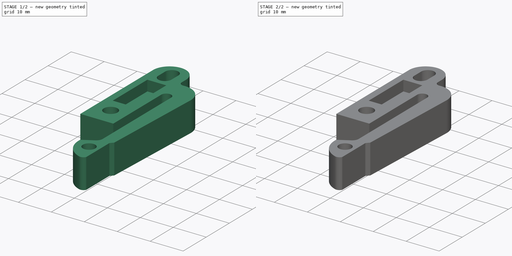
[diagram: build sequence overview — one tinted view per stage of 2, left to right]
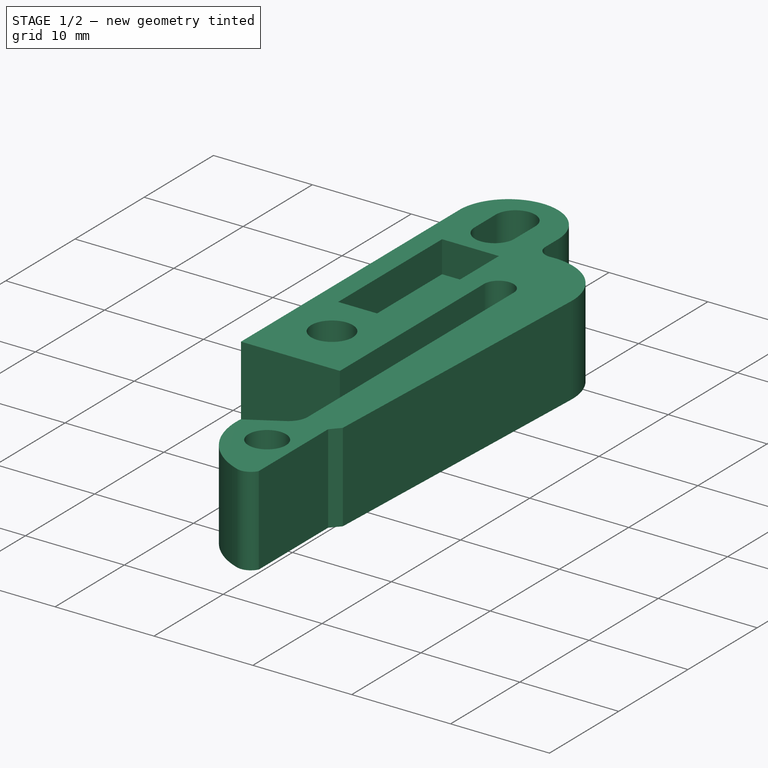
[diagram: stage 1 of 2 — iso view after this stage's code; geometry added in this stage tinted green]
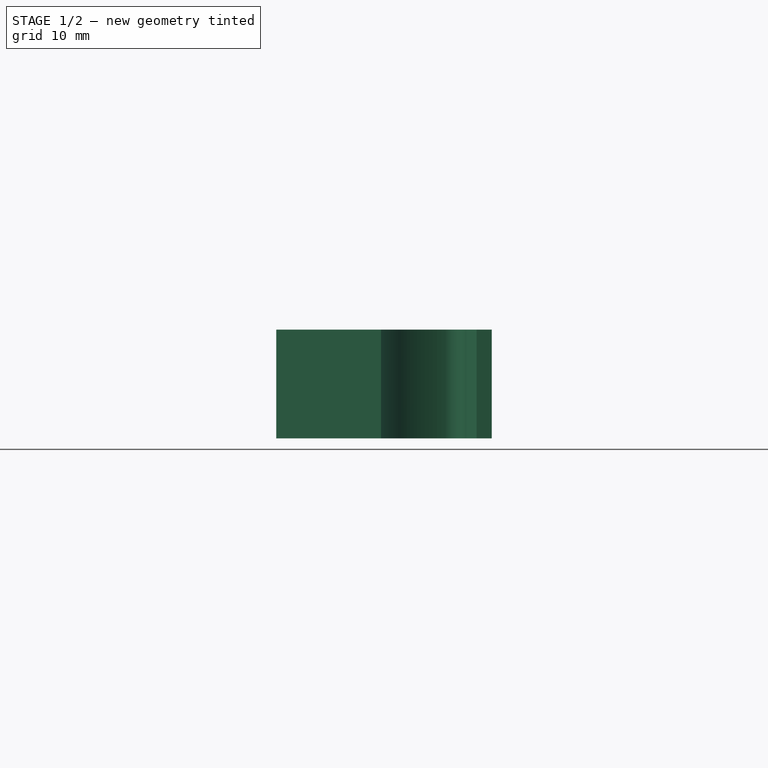
[diagram: stage 1 of 2 — front view after this stage's code; geometry added in this stage tinted green]
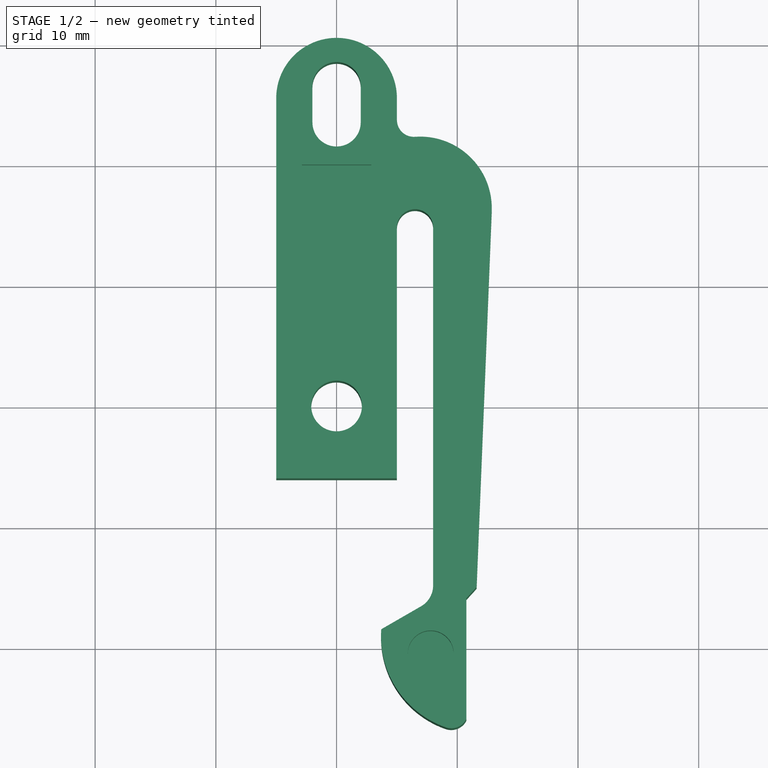
[diagram: stage 1 of 2 — top view after this stage's code; geometry added in this stage tinted green]
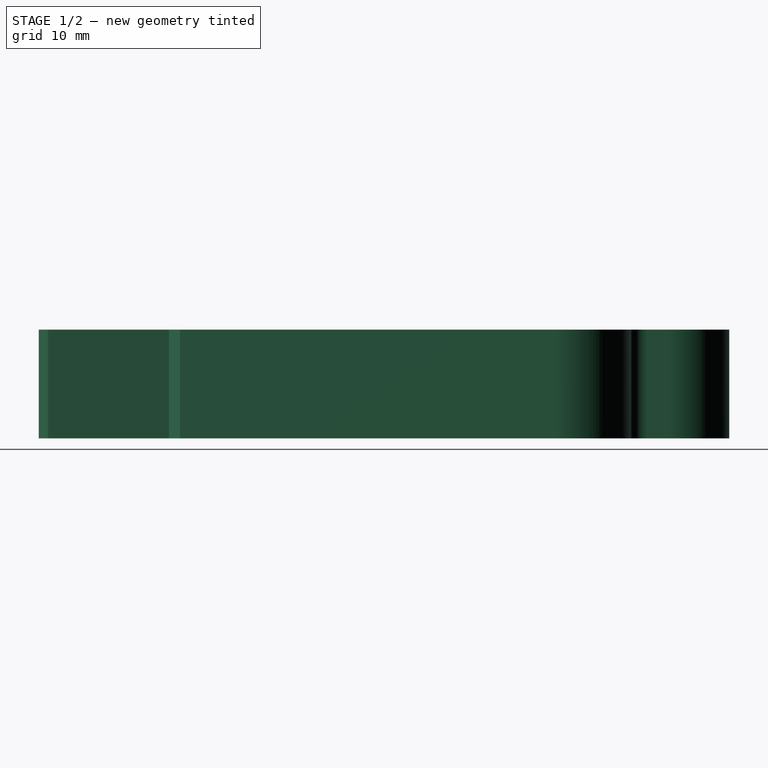
[diagram: stage 1 of 2 — right view after this stage's code; geometry added in this stage tinted green]
FCSTD DOCUMENT  (FreeCAD 0.17R13541 (Git))
Label: Facid_Flip_Switch
License: All rights reserved
LicenseURL: http://en.wikipedia.org/wiki/All_rights_reserved
objects: Sketcher::SketchObject×2, PartDesign::Pad×1, PartDesign::Pocket×1, PartDesign::Mirrored×1, PartDesign::Body×1
note: 8 computed .brp shape members not serialized (recipe doc carries the construction recipe); baked Part::Feature solids carry a one-line shape summary decoded from their .brp

FEATURE [Sketcher::SketchObject] Sketch
  MapMode = 5
  Support = -> [XY_Plane]
  sketch-geometry (28):
    g0: Circle CenterX=0 CenterY=0 CenterZ=0 NormalX=0 NormalY=0 NormalZ=1 AngleXU=0 Radius=2.1
    g1: LineSegment StartX=-5 StartY=-6 StartZ=0 EndX=5 EndY=-6 EndZ=0
    g2: LineSegment StartX=-5 StartY=-6 StartZ=0 EndX=-5 EndY=25.5 EndZ=0
    g3: ArcOfCircle CenterX=0 CenterY=25.5 CenterZ=0 NormalX=0 NormalY=0 NormalZ=1 AngleXU=0 Radius=5 StartAngle=0 EndAngle=3.14159
    g4: GeomPoint X=0 Y=30.5 Z=0
    g5: ArcOfCircle CenterX=0 CenterY=23.5 CenterZ=0 NormalX=0 NormalY=0 NormalZ=1 AngleXU=0 Radius=2 StartAngle=3.14159 EndAngle=6.28319
    g6: ArcOfCircle CenterX=0 CenterY=26.5 CenterZ=0 NormalX=0 NormalY=0 NormalZ=1 AngleXU=0 Radius=2 StartAngle=0 EndAngle=3.14159
    g7: LineSegment StartX=2 StartY=23.5 StartZ=0 EndX=2 EndY=26.5 EndZ=0
    g8: LineSegment StartX=-2 StartY=23.5 StartZ=0 EndX=-2 EndY=26.5 EndZ=0
    g9: GeomPoint X=0 Y=28.5 Z=0
    g10: GeomPoint X=0 Y=21.5 Z=0
    g11: LineSegment StartX=5 StartY=25.5 StartZ=0 EndX=5 EndY=23.7 EndZ=0
    g12: ArcOfCircle CenterX=6.4 CenterY=23.7 CenterZ=0 NormalX=0 NormalY=0 NormalZ=1 AngleXU=0 Radius=1.4 StartAngle=3.14159 EndAngle=4.78388
    g13: ArcOfCircle CenterX=6.92392 CenterY=16.3838 CenterZ=0 NormalX=0 NormalY=0 NormalZ=1 AngleXU=0 Radius=5.9349 StartAngle=6.24294 EndAngle=7.92547
    g14: ArcOfCircle CenterX=6.5 CenterY=14.8036 CenterZ=0 NormalX=0 NormalY=0 NormalZ=1 AngleXU=0 Radius=1.5 StartAngle=0 EndAngle=3.14159
    g15: LineSegment StartX=5 StartY=14.8036 StartZ=0 EndX=5 EndY=-6 EndZ=0
    g16: LineSegment StartX=12.854 StartY=16.1451 StartZ=0 EndX=11.6 EndY=-15 EndZ=0
    g17: LineSegment [constr] StartX=8 StartY=14.8036 StartZ=0 EndX=12.8 EndY=14.8036 EndZ=0
    g18: LineSegment [constr] StartX=6.5 StartY=22.3036 StartZ=0 EndX=6.5 EndY=14.8036 EndZ=0
    g19: GeomPoint X=6.5 Y=16.3036 Z=0
    g20: LineSegment StartX=11.6 StartY=-15 StartZ=0 EndX=10.7586 EndY=-15.9245 EndZ=0
    g21: LineSegment StartX=10.7586 StartY=-15.9245 StartZ=0 EndX=10.7586 EndY=-25.9245 EndZ=0
    g22: LineSegment StartX=8 StartY=-14.8627 StartZ=0 EndX=8 EndY=14.8036 EndZ=0
    g23: ArcOfCircle CenterX=6 CenterY=-14.8627 CenterZ=0 NormalX=0 NormalY=0 NormalZ=1 AngleXU=0 Radius=2 StartAngle=5.23599 EndAngle=6.28319
    g24: LineSegment StartX=7 StartY=-16.5947 StartZ=0 EndX=3.7 EndY=-18.5 EndZ=0
    g25: ArcOfCircle CenterX=11.6796 CenterY=-19.0708 CenterZ=0 NormalX=0 NormalY=0 NormalZ=1 AngleXU=0 Radius=8 StartAngle=3.07018 EndAngle=4.37534
    g26: ArcOfCircle CenterX=9.5 CenterY=-25.2909 CenterZ=0 NormalX=0 NormalY=0 NormalZ=1 AngleXU=0 Radius=1.40911 StartAngle=4.37534 EndAngle=5.81685
    g27: LineSegment [constr] StartX=9.5 StartY=-25.2909 StartZ=0 EndX=9.5 EndY=-26.7 EndZ=0
  constraints (75):
    c: Coincident(g0,g-1)
    c: Radius(g0) = 2.1
    c: Horizontal(g1)
    c: DistanceY(g1,g-1) = 6
    c: DistanceX(g1,g1) = 10
    c: Symmetric(g1,g1,g-2)
    c: Coincident(g2,g1)
    c: Vertical(g2)
    c: PointOnObject(g3,g-2)
    c: Tangent(g3,g2) = 1.5708
    c: PointOnObject(g4,g3)
    c: PointOnObject(g4,g-2)
    c: DistanceY(g-1,g4) = 30.5
    c: Tangent(g5,g8) = 1.5708
    c: Tangent(g5,g7) = -1.5708
    c: Tangent(g7,g6) = -1.5708
    c: Tangent(g8,g6) = 1.5708
    c: Vertical(g7)
    c: Equal(g5,g6)
    c: PointOnObject(g5,g-2)
    c: DistanceX(g5,g5) = 4
    c: PointOnObject(g9,g6)
    c: PointOnObject(g10,g5)
    c: PointOnObject(g10,g-2)
    c: PointOnObject(g9,g-2)
    c: DistanceY(g-1,g10) = 21.5
    c: DistanceY(g10,g9) = 7
    c: DistanceY(g9,g4) = 2
    c: Vertical(g11)
    c: Coincident(g15,g1)
    c: Vertical(g15)
    c: Coincident(g17,g14)
    c: Radius(g14) = 1.5
    c: Radius(g12) = 1.4
    c: Horizontal(g17)
    c: DistanceX(g17,g17) = 4.8
    c: Tangent(g13,g12) = 1.5708
    c: Tangent(g16,g13) = 1.5708
    c: Coincident(g18,g12)
    c: Coincident(g18,g14)
    c: Vertical(g18)
    c: PointOnObject(g19,g14)
    c: Tangent(g12,g11) = -1.5708
    c: DistanceY(g-1,g11) = 23.7
    c: Perpendicular(g14,g17)
    c: PointOnObject(g19,g18)
    c: DistanceY(g19,g12) = 6
    c: Tangent(g15,g14) = -1.5708
    c: Tangent(g11,g3) = 1.5708
    c: PointOnObject(g17,g16)
    c: DistanceX(g-1,g16) = 11.6
    c: DistanceY(g16,g-1) = 15
    c: Coincident(g20,g16)
    c: Coincident(g21,g20)
    c: Vertical(g21)
    c: Coincident(g22,g14)
    c: Vertical(g22)
    c: Coincident(g25,g24)
    c: Tangent(g26,g25) = -1.5708
    c: Tangent(g24,g23) = 1.5708
    c: Tangent(g23,g22) = -1.5708
    c: Angle(g16,g20) = 2.44346
    c: Distance(g20) = 1.25
    c: Coincident(g26,g21)
    c: Radius(g25) = 8
    c: DistanceY(g21,g21) = 10
    c: DistanceY(g24,g-1) = 18.5
    c: DistanceX(g-1,g24) = 3.7
    c: Angle(g22,g24) = 2.0944
    c: Radius(g23) = 2
    c: Coincident(g27,g26)
    c: PointOnObject(g27,g26)
    c: Vertical(g27)
    c: DistanceY(g27,g-1) = 26.7
    c: DistanceX(g-1,g27) = 9.5
FEATURE [PartDesign::Pad] Pad
  Length = 9
  Length2 = 100
  Midplane = true
  Profile = -> Sketch
  Type = 0
FEATURE [Sketcher::SketchObject] Sketch001
  MapMode = 5
  Placement = pos=(0,0,4.5) rot=(0,0,1;0rad)
  Support = -> [Pad]
  sketch-geometry (5):
    g0: LineSegment StartX=-2.875 StartY=20 StartZ=0 EndX=2.875 EndY=20 EndZ=0
    g1: LineSegment StartX=2.875 StartY=20 StartZ=0 EndX=2.875 EndY=5 EndZ=0
    g2: LineSegment StartX=2.875 StartY=5 StartZ=0 EndX=-2.875 EndY=5 EndZ=0
    g3: LineSegment StartX=-2.875 StartY=5 StartZ=0 EndX=-2.875 EndY=20 EndZ=0
    g4: Circle CenterX=7.8 CenterY=-20.5 CenterZ=0 NormalX=0 NormalY=0 NormalZ=1 AngleXU=0 Radius=1.9
  constraints (15):
    c: Coincident(g0,g1)
    c: Coincident(g1,g2)
    c: Coincident(g2,g3)
    c: Coincident(g3,g0)
    c: Horizontal(g0)
    c: Horizontal(g2)
    c: Vertical(g1)
    c: Vertical(g3)
    c: Symmetric(g2,g1,g-2)
    c: DistanceY(g-1,g2) = 5
    c: DistanceY(g3,g3) = 15
    c: DistanceX(g0,g0) = 5.75
    c: DistanceY(g4,g-1) = 20.5
    c: DistanceX(g-1,g4) = 7.8
    c: Radius(g4) = 1.9
FEATURE [PartDesign::Pocket] Pocket
  BaseFeature = -> Pad
  Length = 3.2
  Length2 = 100
  Profile = -> Sketch001
  Type = 0
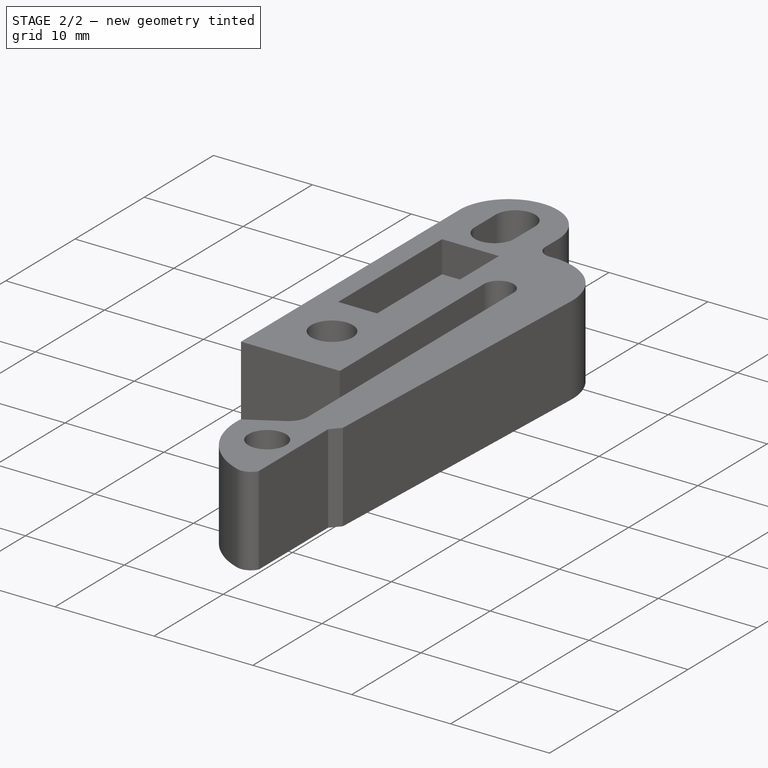
[diagram: stage 2 of 2 — iso view after this stage's code; geometry added in this stage tinted green]
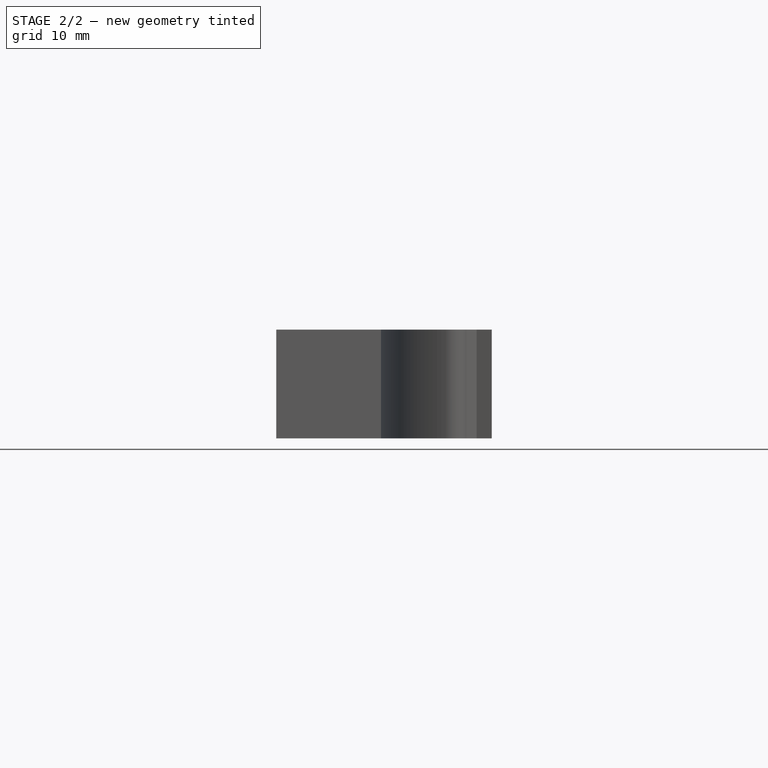
[diagram: stage 2 of 2 — front view after this stage's code; geometry added in this stage tinted green]
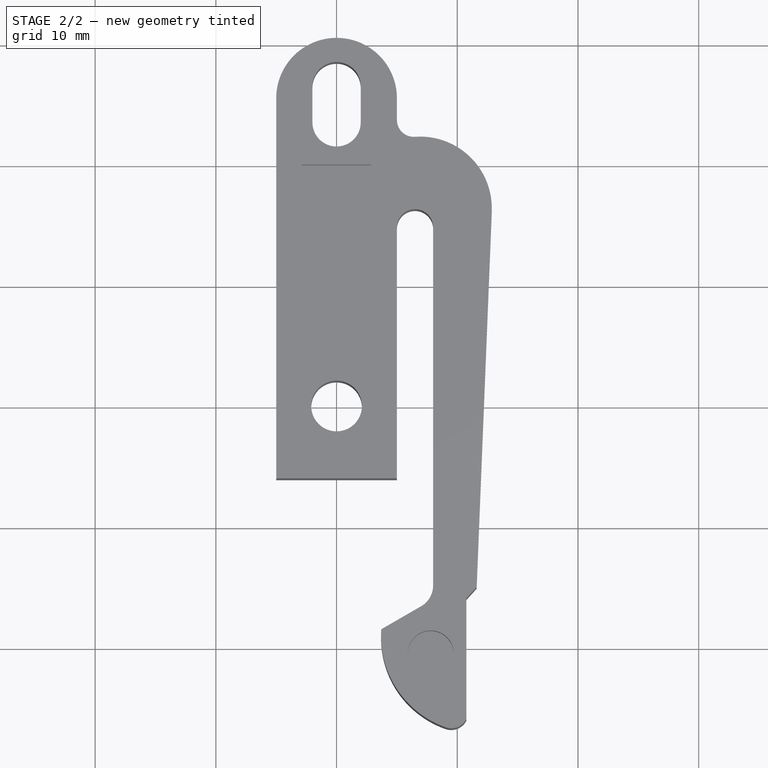
[diagram: stage 2 of 2 — top view after this stage's code; geometry added in this stage tinted green]
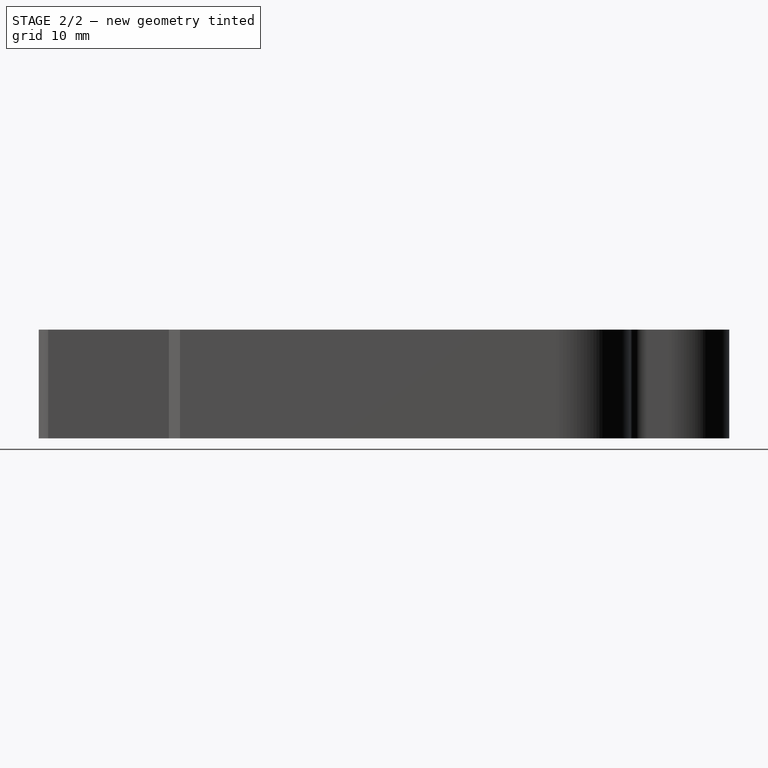
[diagram: stage 2 of 2 — right view after this stage's code; geometry added in this stage tinted green]
FEATURE [PartDesign::Mirrored] Mirrored
  BaseFeature = -> Pocket
  MirrorPlane = -> XY_Plane
  Originals = -> [Pocket]
FEATURE [PartDesign::Body] Body
  Group = -> [Sketch,Pad,Sketch001,Pocket,Mirrored]
  Origin = -> Origin
  Tip = -> Mirrored
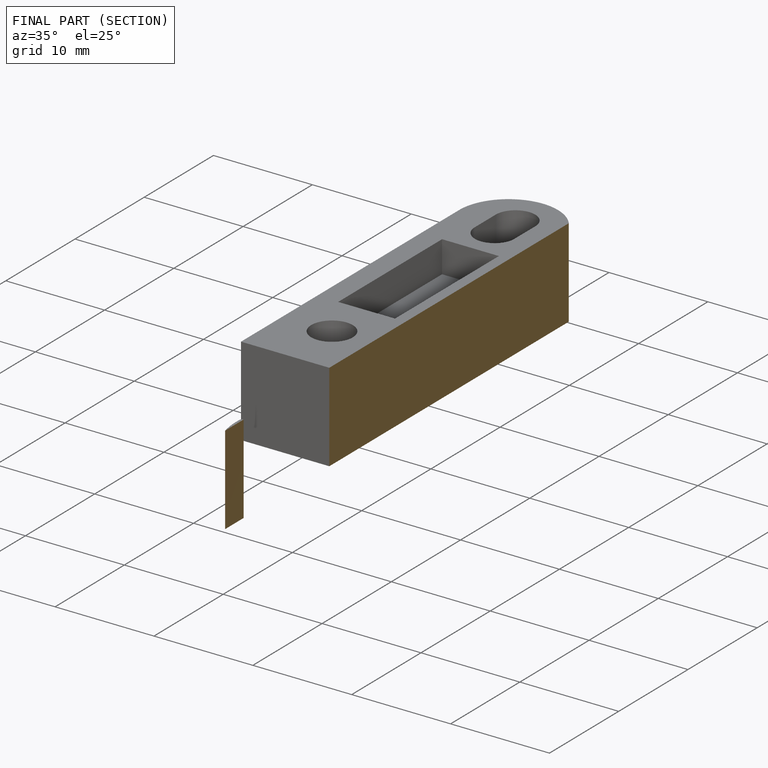
[diagram: finished part — half-section view (interior)]
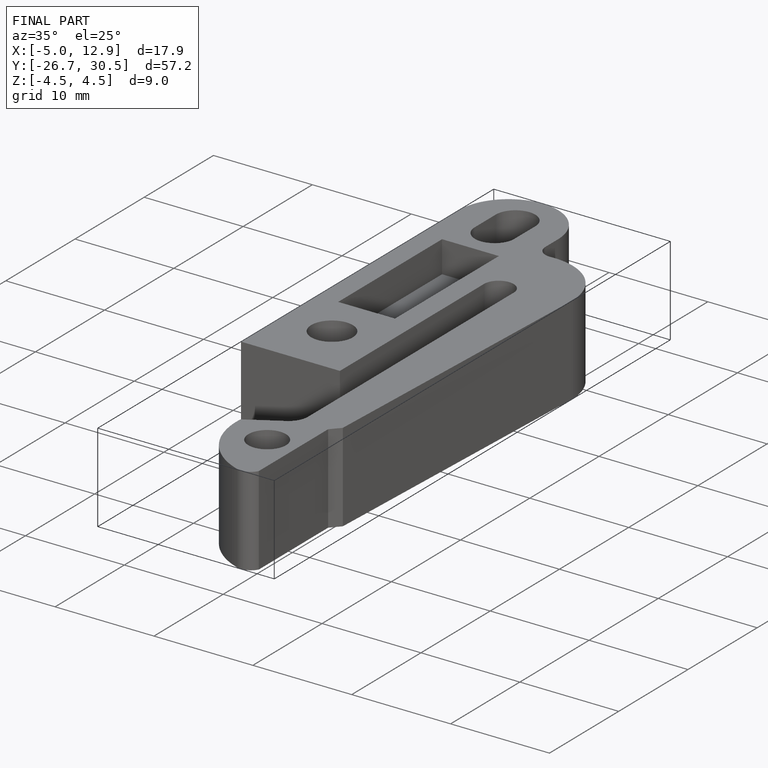
[diagram: finished part — iso view with bounding-box wireframe]
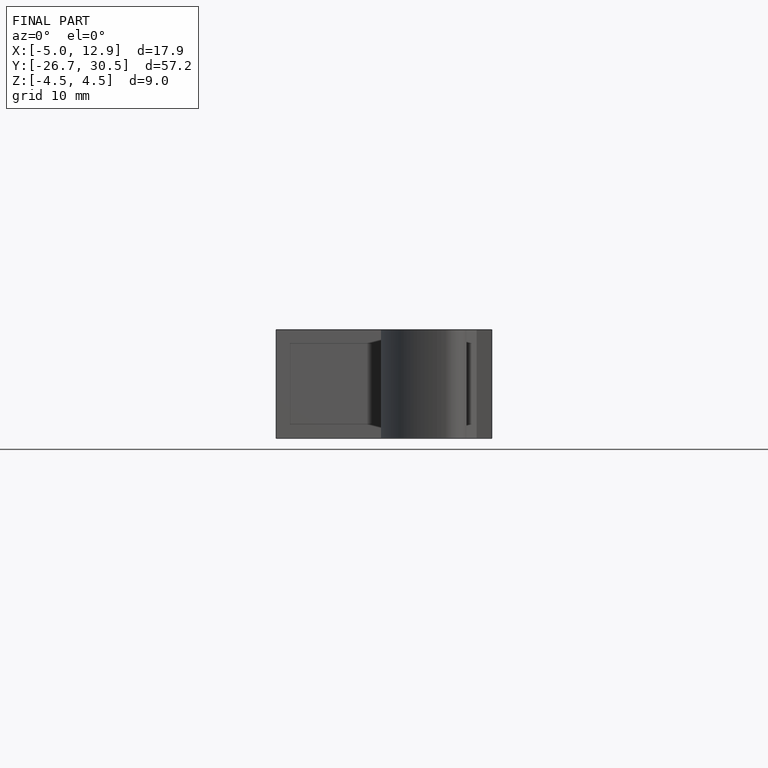
[diagram: finished part — front view with bounding-box wireframe]
